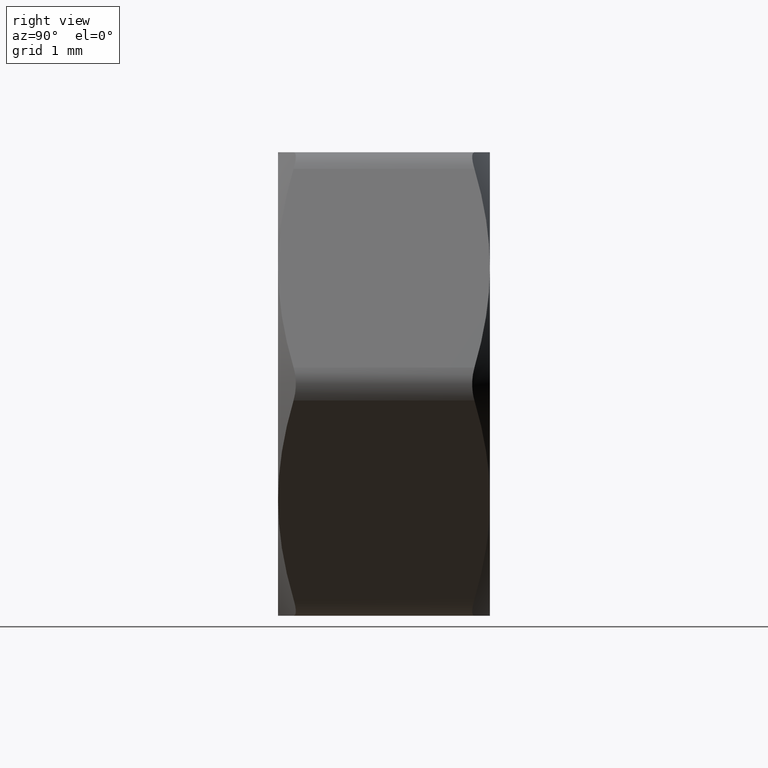
[diagram: clean part render]
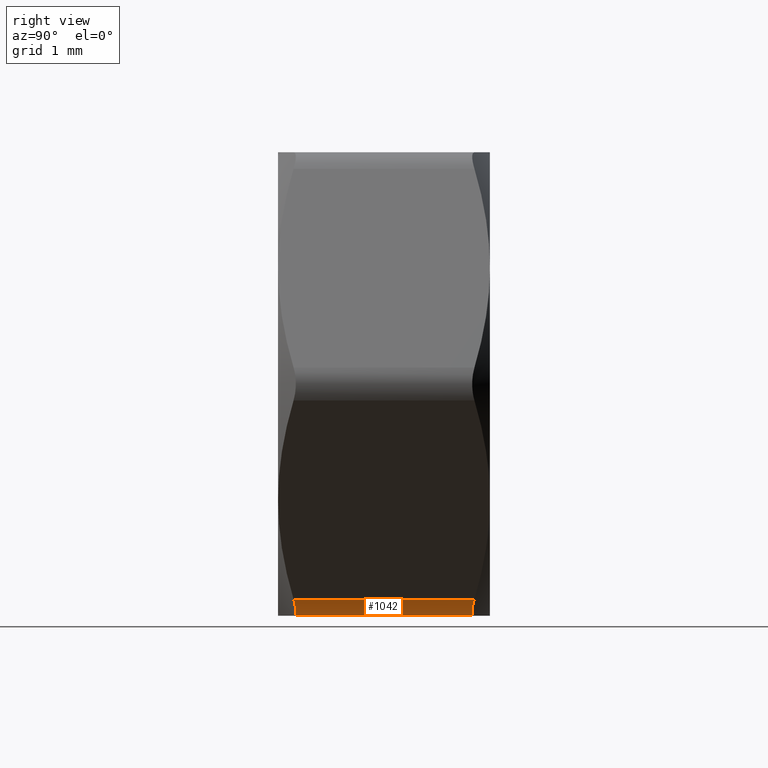
[diagram: same view with one face highlighted and labeled with its STEP entity id]
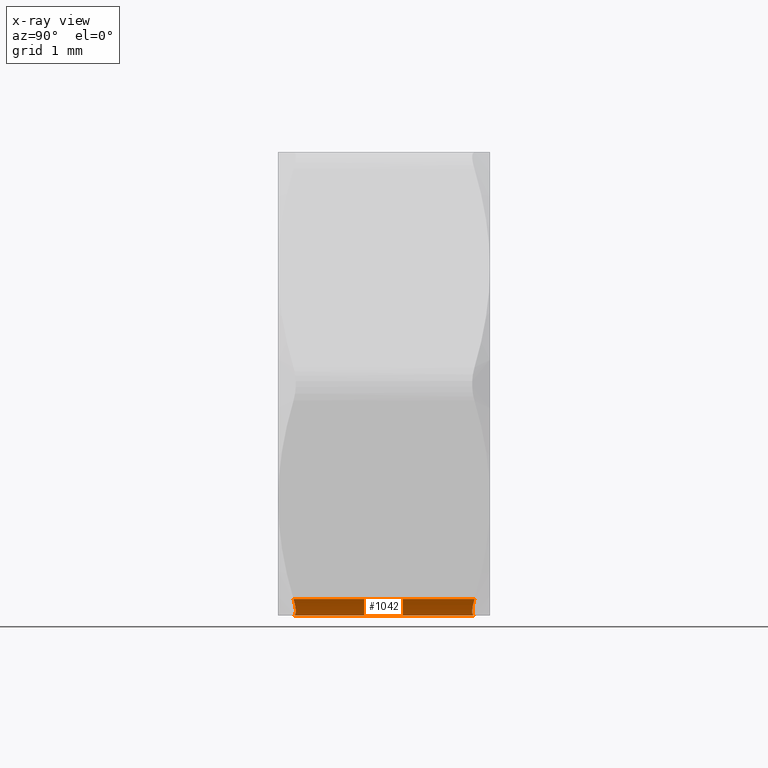
[diagram: x-ray of the same camera — body ghosted, the highlighted face saturated]
A machine part, right view. The second image highlights one B-rep face of the part: STEP entity #1042.
The next image is the same camera in x-ray: the body ghosted, the highlighted face saturated — about 0% of this face is hidden behind the body in this view.
In plain terms, the highlighted cylindrical surface (edge-blend (fillet) strip) has radius 0.5 mm, axis along (0, -1, 0).
Its self-contained STEP definition (entity closure, byte-faithful):
#24 = FACE_OUTER_BOUND ( 'NONE', #276, .T. ) ;
#45 = CYLINDRICAL_SURFACE ( 'NONE', #427, 0.5000000000000000000 ) ;
#62 = CARTESIAN_POINT ( 'NONE',  ( 1.732050807568869200, -1.366101065752246800, -3.500000000000001300 ) ) ;
#159 = CARTESIAN_POINT ( 'NONE',  ( 1.818213813996152100, -1.344036980735073200, -3.500000000000003100 ) ) ;
#249 = CARTESIAN_POINT ( 'NONE',  ( 1.732050807568871400, 1.600000000000000100, -3.000000000000001300 ) ) ;
#255 = ORIENTED_EDGE ( 'NONE', *, *, #1358, .F. ) ;
#276 = EDGE_LOOP ( 'NONE', ( #255, #596, #1744, #1545 ) ) ;
#304 = CARTESIAN_POINT ( 'NONE',  ( 1.732050807568869200, -1.366101065752246800, -3.500000000000001300 ) ) ;
#307 = B_SPLINE_CURVE_WITH_KNOTS ( 'NONE', 3,
 ( #304, #159, #955, #319, #1401, #1564 ),
 .UNSPECIFIED., .F., .F.,
 ( 4, 2, 4 ),
 ( 2.045668567712605500E-018, 0.0002632573935146148600, 0.0005265147870292280900 ),
 .UNSPECIFIED. ) ;
#312 = CARTESIAN_POINT ( 'NONE',  ( 1.732050807568869200, 1.366101065752246800, -3.500000000000001300 ) ) ;
#319 = CARTESIAN_POINT ( 'NONE',  ( 2.057833504183642000, -1.332013481293206100, -3.389344969317413800 ) ) ;
#427 = AXIS2_PLACEMENT_3D ( 'NONE', #249, #1179, #1519 ) ;
#492 = EDGE_CURVE ( 'NONE', #870, #1890, #2009, .T. ) ;
#545 = DIRECTION ( 'NONE',  ( -0.0000000000000000000, 1.000000000000000000, -0.0000000000000000000 ) ) ;
#596 = ORIENTED_EDGE ( 'NONE', *, *, #2022, .F. ) ;
#667 = B_SPLINE_CURVE_WITH_KNOTS ( 'NONE', 3,
 ( #945, #935, #1555, #777, #1725, #312 ),
 .UNSPECIFIED., .F., .F.,
 ( 4, 2, 4 ),
 ( 7.203667366492173200E-015, 0.0002632573935182447100, 0.0005265147870292857700 ),
 .UNSPECIFIED. ) ;
#775 = CARTESIAN_POINT ( 'NONE',  ( 1.732050807568869200, 1.366101065752246800, -3.500000000000001300 ) ) ;
#777 = CARTESIAN_POINT ( 'NONE',  ( 1.906342093523845800, 1.332013481293493400, -3.476808576041107400 ) ) ;
#843 = VERTEX_POINT ( 'NONE', #2064 ) ;
#870 = VERTEX_POINT ( 'NONE', #775 ) ;
#900 = DIRECTION ( 'NONE',  ( 0.0000000000000000000, -1.000000000000000000, 0.0000000000000000000 ) ) ;
#935 = CARTESIAN_POINT ( 'NONE',  ( 2.121982006248091000, 1.344036980738207100, -3.324619352431357600 ) ) ;
#940 = VECTOR ( 'NONE', #900, 1000.000000000000000 ) ;
#945 = CARTESIAN_POINT ( 'NONE',  ( 2.165063509457803900, 1.366101065750563700, -3.250000000005694100 ) ) ;
#955 = CARTESIAN_POINT ( 'NONE',  ( 1.905537153561605000, -1.332088313469486500, -3.477102041811246800 ) ) ;
#1042 = ADVANCED_FACE ( 'NONE', ( #24 ), #45, .T. ) ;
#1179 = DIRECTION ( 'NONE',  ( 0.0000000000000000000, -1.000000000000000000, 0.0000000000000000000 ) ) ;
#1182 = CARTESIAN_POINT ( 'NONE',  ( 2.165063509461090600, -1.366101065752247000, -3.250000000000001800 ) ) ;
#1312 = VECTOR ( 'NONE', #545, 1000.000000000000000 ) ;
#1358 = EDGE_CURVE ( 'NONE', #843, #870, #667, .T. ) ;
#1372 = CARTESIAN_POINT ( 'NONE',  ( 1.732050807568871400, 1.600000000000000100, -3.500000000000001300 ) ) ;
#1401 = CARTESIAN_POINT ( 'NONE',  ( 2.121969493532742200, -1.344030572379085500, -3.324641025090492500 ) ) ;
#1447 = EDGE_CURVE ( 'NONE', #1890, #1967, #307, .T. ) ;
#1519 = DIRECTION ( 'NONE',  ( 0.0000000000000000000, 0.0000000000000000000, -1.000000000000000000 ) ) ;
#1545 = ORIENTED_EDGE ( 'NONE', *, *, #492, .F. ) ;
#1555 = CARTESIAN_POINT ( 'NONE',  ( 2.058490122975035400, 1.332088313469197000, -3.388794603747713500 ) ) ;
#1564 = CARTESIAN_POINT ( 'NONE',  ( 2.165063509461090600, -1.366101065752247000, -3.250000000000001800 ) ) ;
#1639 = CARTESIAN_POINT ( 'NONE',  ( 2.165063509461091100, 1.600000000000000100, -3.250000000000000900 ) ) ;
#1725 = CARTESIAN_POINT ( 'NONE',  ( 1.818238839426059600, 1.344030572379142800, -3.500000000000003600 ) ) ;
#1736 = LINE ( 'NONE', #1639, #1312 ) ;
#1744 = ORIENTED_EDGE ( 'NONE', *, *, #1447, .F. ) ;
#1890 = VERTEX_POINT ( 'NONE', #62 ) ;
#1967 = VERTEX_POINT ( 'NONE', #1182 ) ;
#2009 = LINE ( 'NONE', #1372, #940 ) ;
#2022 = EDGE_CURVE ( 'NONE', #1967, #843, #1736, .T. ) ;
#2064 = CARTESIAN_POINT ( 'NONE',  ( 2.165063509457803900, 1.366101065750563700, -3.250000000005694100 ) ) ;